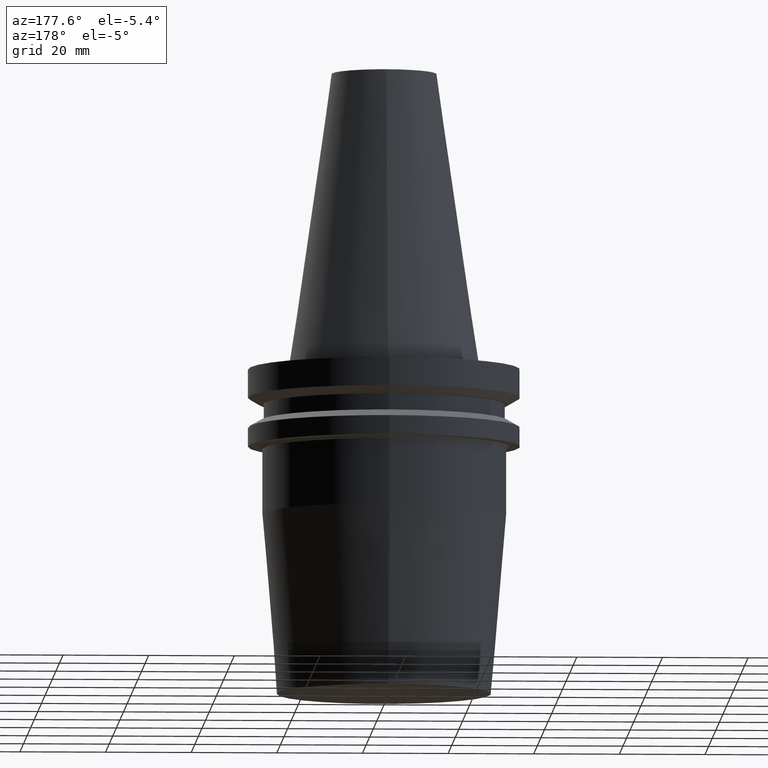
[diagram: clean part render]
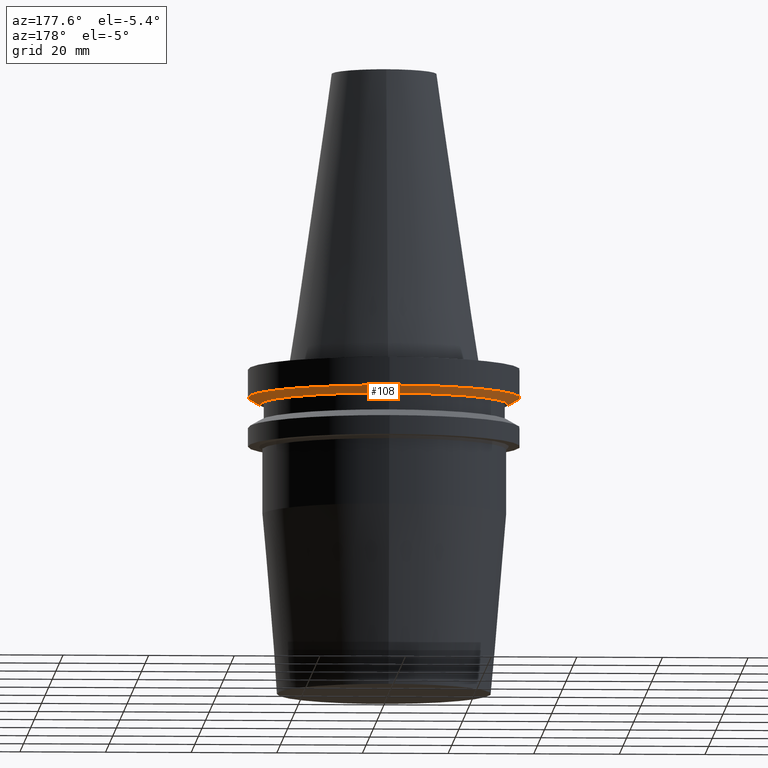
[diagram: same view with one face highlighted and labeled with its STEP entity id]
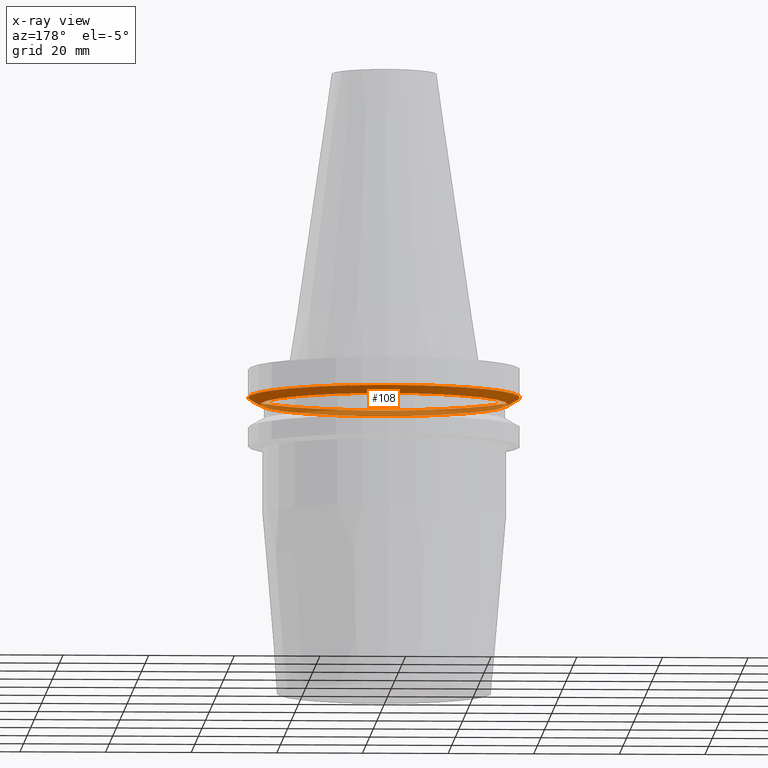
[diagram: x-ray of the same camera — body ghosted, the highlighted face saturated]
A machine part, auxiliary view. The second image highlights one B-rep face of the part: STEP entity #108.
The next image is the same camera in x-ray: the body ghosted, the highlighted face saturated — about 36% of this face is hidden behind the body in this view.
In plain terms, the highlighted conical surface has half-angle 60 deg.
Its self-contained STEP definition (entity closure, byte-faithful):
#108=ADVANCED_FACE('Unnamed[1]',(#232,#233),#234,.T.);
#128=EDGE_CURVE('Unnamed[1]',#265,#265,#266,.T.);
#135=EDGE_CURVE('Unnamed[1]',#276,#276,#277,.T.);
#232=FACE_BOUND('',#384,.T.);
#233=FACE_BOUND('',#385,.T.);
#234=CONICAL_SURFACE('',#386,30.3590187752662,1.0471975511966);
#265=VERTEX_POINT('',#425);
#266=CIRCLE('',#426,31.75);
#276=VERTEX_POINT('',#439);
#277=CIRCLE('',#440,28.9680375505323);
#384=EDGE_LOOP('',(#529));
#385=EDGE_LOOP('',(#530));
#386=AXIS2_PLACEMENT_3D('',#531,#532,#533);
#425=CARTESIAN_POINT('',(4.64988177975518E-016,31.75,-7.59383323092439));
#426=AXIS2_PLACEMENT_3D('',#567,#568,#569);
#439=CARTESIAN_POINT('',(5.63337527607784E-016,28.9680375505323,-9.20000000000003));
#440=AXIS2_PLACEMENT_3D('',#579,#580,#581);
#529=ORIENTED_EDGE('',*,*,#135,.F.);
#530=ORIENTED_EDGE('',*,*,#128,.T.);
#531=CARTESIAN_POINT('',(5.14162852791651E-016,-1.80076925614332E-014,-8.3969166154622));
#532=DIRECTION('',(-6.12323399573677E-017,1.22696610407864E-016,1.0));
#533=DIRECTION('',(2.68584782933801E-033,1.0,-1.22696610407864E-016));
#567=CARTESIAN_POINT('',(4.64988177975517E-016,-1.79091569522755E-014,-7.59383323092437));
#568=DIRECTION('',(6.12323399573677E-017,-1.22696610407796E-016,-1.0));
#569=DIRECTION('',(2.68584782933523E-033,1.0,-1.22696610407796E-016));
#579=CARTESIAN_POINT('',(5.63337527607784E-016,-1.81062281705908E-014,-9.20000000000003));
#580=DIRECTION('',(6.12323399573677E-017,-1.22696610407827E-016,-1.0));
#581=DIRECTION('',(2.68584782934106E-033,1.0,-1.22696610407827E-016));